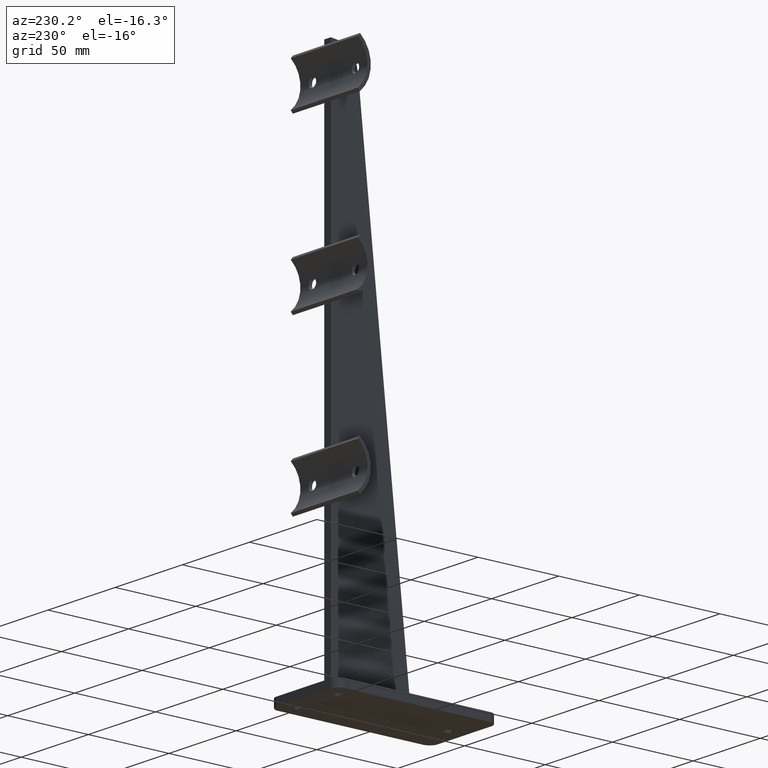
[diagram: clean part render]
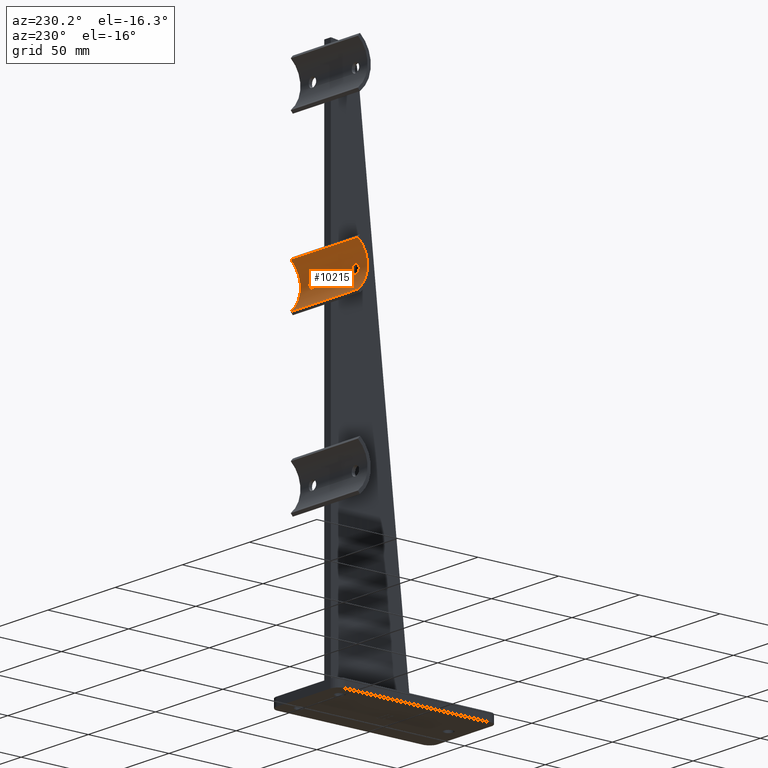
[diagram: same view with one face highlighted and labeled with its STEP entity id]
A machine part, auxiliary view. The second image highlights one B-rep face of the part: STEP entity #10215.
In plain terms, the highlighted cylindrical surface (edge-blend (fillet) strip) has radius 16.85 mm, axis along (-1, -0, -0).
Its self-contained STEP definition (entity closure, byte-faithful):
#5 = CARTESIAN_POINT ( 'NONE',  ( 15.28722502074664114, 31.21157677352550763, 209.8379272935167421 ) ) ;
#10 = VERTEX_POINT ( 'NONE', #6273 ) ;
#11 = CARTESIAN_POINT ( 'NONE',  ( -13.39025697673154625, 31.02245931335957607, 211.6144778964445834 ) ) ;
#47 = CARTESIAN_POINT ( 'NONE',  ( -13.39157880768373055, 31.02266602949436347, 213.3894934520703259 ) ) ;
#81 = CARTESIAN_POINT ( 'NONE',  ( 15.81930940758914339, 31.22590944330039520, 215.2499296659556478 ) ) ;
#88 = CARTESIAN_POINT ( 'NONE',  ( -18.66159067419291517, 31.01423909893658504, 211.7850082820090165 ) ) ;
#161 = CARTESIAN_POINT ( 'NONE',  ( 18.07246140710710591, 31.09770694955068748, 210.6835661301247455 ) ) ;
#246 = CARTESIAN_POINT ( 'NONE',  ( 17.69310687790297010, 31.14181291831046750, 210.3036388615917929 ) ) ;
#295 = CARTESIAN_POINT ( 'NONE',  ( 16.88613969995873987, 31.20313993747728176, 215.1094738047401904 ) ) ;
#599 = EDGE_CURVE ( 'NONE', #4777, #4777, #1475, .T. ) ;
#691 = EDGE_CURVE ( 'NONE', #1190, #10, #4707, .T. ) ;
#876 = CARTESIAN_POINT ( 'NONE',  ( 16.00000000000001776, 31.22592107814690721, 209.7500000000000568 ) ) ;
#914 = DIRECTION ( 'NONE',  ( 0.000000000000000000, 0.000000000000000000, -1.000000000000000000 ) ) ;
#923 = CARTESIAN_POINT ( 'NONE',  ( -18.07313476058117629, 31.09763536701751363, 214.3158766990432582 ) ) ;
#962 = CARTESIAN_POINT ( 'NONE',  ( -13.61229690601313180, 31.05561526023967289, 211.1238799557504819 ) ) ;
#1000 = CARTESIAN_POINT ( 'NONE',  ( 13.25010325931052790, 31.00001685240703253, 212.3187487400902853 ) ) ;
#1032 = CARTESIAN_POINT ( 'NONE',  ( 25.00000000000000000, 47.84999999999998010, 212.5000000000000284 ) ) ;
#1044 = CARTESIAN_POINT ( 'NONE',  ( -18.38594512453174090, 31.05586323373943003, 213.8790573258363281 ) ) ;
#1190 = VERTEX_POINT ( 'NONE', #1430 ) ;
#1199 = CARTESIAN_POINT ( 'NONE',  ( 25.00000000000000000, 36.99999999999999289, 225.3918578955866678 ) ) ;
#1204 = CARTESIAN_POINT ( 'NONE',  ( 16.36180219142763193, 31.22293221109183747, 209.7678922999344593 ) ) ;
#1208 = CARTESIAN_POINT ( 'NONE',  ( -14.61308990710472067, 31.17143243507802097, 210.0984909594845647 ) ) ;
#1430 = CARTESIAN_POINT ( 'NONE',  ( 25.00000000000000000, 36.99999999999999289, 199.6081421044133890 ) ) ;
#1475 = B_SPLINE_CURVE_WITH_KNOTS ( 'NONE', 3,
 ( #3896, #2926, #5678, #7655, #12344, #6620, #9515, #7621, #1995, #10528, #2887, #4779, #1840, #11399, #88, #11485, #3851, #6740, #7577, #9437, #3735, #8494, #1044, #4814, #923, #1955, #1918, #10571, #10407, #3810, #12300, #11438, #2963, #9555, #5755, #5793, #7694, #4852, #5717, #1882, #9598, #11526, #6578, #2809, #4695, #47, #8529, #2849, #9479, #6703, #10450, #4733, #11, #6660, #962, #4890, #4934, #5016, #1208, #4975, #7853, #6778, #2142, #2104 ),
 .UNSPECIFIED., .T., .F.,
 ( 4, 2, 2, 2, 2, 2, 2, 2, 2, 2, 2, 2, 2, 2, 2, 2, 2, 2, 2, 2, 2, 2, 2, 2, 2, 2, 2, 2, 2, 2, 2, 4 ),
 ( 0.000000000000000000, 0.0005381924915633016192, 0.001076384983126603238, 0.001614577474689904858, 0.002152769966253206477, 0.002690962457816508096, 0.003229154949379809715, 0.003767347440943111334, 0.004305539932506412953, 0.004843732424069714139, 0.005381924915633016192, 0.005920117407196317377, 0.006458309898759619430, 0.006996502390322920616, 0.007534694881886222668, 0.008072887373449523854, 0.008611079865012825907, 0.009149272356576126225, 0.009687464848139428278, 0.01022565733970273207, 0.01076384983126603238, 0.01130204232282933270, 0.01184023481439263475, 0.01237842730595593854, 0.01291661979751923886, 0.01345481228908253918, 0.01399300478064584123, 0.01453119727220914328, 0.01506938976377244534, 0.01614577474689905118, 0.01668396723846233762, 0.01722215973002562059 ),
 .UNSPECIFIED. ) ;
#1840 = CARTESIAN_POINT ( 'NONE',  ( -18.47137229060054864, 31.04336206135851128, 211.2806231436684641 ) ) ;
#1874 = CARTESIAN_POINT ( 'NONE',  ( 13.26782110814927229, 31.00293502748650454, 212.8606549452419756 ) ) ;
#1882 = CARTESIAN_POINT ( 'NONE',  ( -14.32244008154517267, 31.14216066407071537, 214.6865117806227943 ) ) ;
#1918 = CARTESIAN_POINT ( 'NONE',  ( -17.67856677578230773, 31.14204833117518589, 214.6856238620797228 ) ) ;
#1949 = CARTESIAN_POINT ( 'NONE',  ( 13.33810570095379155, 31.01419060602339073, 213.2135770647291793 ) ) ;
#1955 = CARTESIAN_POINT ( 'NONE',  ( -17.81710139316976438, 31.12738984087915739, 214.5720614007790346 ) ) ;
#1989 = CARTESIAN_POINT ( 'NONE',  ( 14.18183036890520121, 31.12726304320740667, 210.4290538148147789 ) ) ;
#1995 = CARTESIAN_POINT ( 'NONE',  ( -17.81816963109477214, 31.12726304320739956, 210.4290538148147789 ) ) ;
#2096 = CARTESIAN_POINT ( 'NONE',  ( 17.37755728276678369, 31.16961175324377109, 214.8869178828574320 ) ) ;
#2104 = CARTESIAN_POINT ( 'NONE',  ( -15.99999999999996270, 31.22592107814690365, 209.7500000000000568 ) ) ;
#2142 = CARTESIAN_POINT ( 'NONE',  ( -15.81799534347530489, 31.22592107814690365, 209.7500000000000568 ) ) ;
#2170 = VECTOR ( 'NONE', #9926, 1000.000000000000000 ) ;
#2185 = CARTESIAN_POINT ( 'NONE',  ( 17.81585700137570072, 31.12751637135917449, 214.5729912559882280 ) ) ;
#2521 = EDGE_CURVE ( 'NONE', #5695, #5695, #12085, .T. ) ;
#2586 = CARTESIAN_POINT ( 'NONE',  ( 25.00000000000000000, 36.99999999999999289, 225.3918578955866678 ) ) ;
#2725 = LINE ( 'NONE', #2586, #8786 ) ;
#2804 = CARTESIAN_POINT ( 'NONE',  ( 13.81293171376595907, 31.08296200054288505, 214.1766829028081816 ) ) ;
#2809 = CARTESIAN_POINT ( 'NONE',  ( -13.61482034663789875, 31.05597373240178527, 213.8804271613861943 ) ) ;
#2842 = CARTESIAN_POINT ( 'NONE',  ( 14.32301546036621254, 31.14221262062450890, 210.3131112287670419 ) ) ;
#2849 = CARTESIAN_POINT ( 'NONE',  ( -13.26823735599736054, 31.00300256753125083, 212.8634836499048220 ) ) ;
#2887 = CARTESIAN_POINT ( 'NONE',  ( -18.18508113167607831, 31.08322744553566253, 210.8205359700819486 ) ) ;
#2920 = CARTESIAN_POINT ( 'NONE',  ( 14.77981434536757810, 31.18202765517759545, 214.9710464121201312 ) ) ;
#2926 = CARTESIAN_POINT ( 'NONE',  ( -16.18200465652462583, 31.22592107814690721, 209.7500000000000568 ) ) ;
#2952 = CARTESIAN_POINT ( 'NONE',  ( 2.500000000000000000, 47.84999999999998010, 212.5000000000000284 ) ) ;
#2959 = CARTESIAN_POINT ( 'NONE',  ( 14.62171131636371335, 31.16954551987002731, 210.1135633365882711 ) ) ;
#2963 = CARTESIAN_POINT ( 'NONE',  ( -16.18069059241084062, 31.22590944330038454, 215.2499296659557046 ) ) ;
#3040 = CARTESIAN_POINT ( 'NONE',  ( 16.18200465652467557, 31.22592107814690365, 209.7500000000000568 ) ) ;
#3083 = CARTESIAN_POINT ( 'NONE',  ( 16.71705282925604052, 31.21141090142648267, 209.8389572437603761 ) ) ;
#3125 = CARTESIAN_POINT ( 'NONE',  ( 18.06958740763672111, 31.09806536251517173, 214.3197355189697362 ) ) ;
#3438 = AXIS2_PLACEMENT_3D ( 'NONE', #9621, #8831, #6165 ) ;
#3697 = EDGE_LOOP ( 'NONE', ( #8886 ) ) ;
#3729 = CARTESIAN_POINT ( 'NONE',  ( 13.39010531092610989, 31.02243631840573812, 213.3851467991339348 ) ) ;
#3735 = CARTESIAN_POINT ( 'NONE',  ( -18.60989468907387234, 31.02243631840573101, 213.3851467991337643 ) ) ;
#3769 = CARTESIAN_POINT ( 'NONE',  ( 13.52808328897528511, 31.04328344392344974, 213.7184674463560441 ) ) ;
#3799 = DIRECTION ( 'NONE',  ( -1.000000000000000000, -0.000000000000000000, -0.000000000000000000 ) ) ;
#3810 = CARTESIAN_POINT ( 'NONE',  ( -16.88754972215579642, 31.20307254880671266, 215.1090570889353160 ) ) ;
#3844 = CARTESIAN_POINT ( 'NONE',  ( 15.28385126544348260, 31.21143786437675516, 215.1612084688597974 ) ) ;
#3851 = CARTESIAN_POINT ( 'NONE',  ( -18.74989674068944367, 31.00001685240703964, 212.3187487400903422 ) ) ;
#3891 = CARTESIAN_POINT ( 'NONE',  ( 18.66143908557381437, 31.01426261333764955, 213.2151150261996690 ) ) ;
#3896 = CARTESIAN_POINT ( 'NONE',  ( -15.99999999999996270, 31.22592107814690365, 209.7500000000000568 ) ) ;
#3924 = CARTESIAN_POINT ( 'NONE',  ( 18.46982777941546061, 31.04359179662767687, 213.7227062025804116 ) ) ;
#3964 = CARTESIAN_POINT ( 'NONE',  ( 18.38517965336209059, 31.05597373240178527, 213.8804271613861943 ) ) ;
#4029 = CYLINDRICAL_SURFACE ( 'NONE', #6591, 16.85000000000000497 ) ;
#4609 = CARTESIAN_POINT ( 'NONE',  ( -15.99999999999996270, 31.22592107814690721, 209.7500000000000284 ) ) ;
#4648 = EDGE_CURVE ( 'NONE', #1190, #11424, #9268, .T. ) ;
#4655 = CARTESIAN_POINT ( 'NONE',  ( 13.92864394951008933, 31.09784472354249374, 210.6822973231390677 ) ) ;
#4691 = CARTESIAN_POINT ( 'NONE',  ( 14.32143322421767806, 31.14204833117519300, 214.6856238620796375 ) ) ;
#4695 = CARTESIAN_POINT ( 'NONE',  ( -13.53017222058451452, 31.04359179662767332, 213.7227062025803264 ) ) ;
#4707 = LINE ( 'NONE', #5910, #2170 ) ;
#4713 = ORIENTED_EDGE ( 'NONE', *, *, #691, .T. ) ;
#4728 = CARTESIAN_POINT ( 'NONE',  ( 13.61405487546824311, 31.05586323373944069, 213.8790573258363850 ) ) ;
#4733 = CARTESIAN_POINT ( 'NONE',  ( -13.33728927372719575, 31.01406095546570540, 211.7895920555114060 ) ) ;
#4774 = CARTESIAN_POINT ( 'NONE',  ( 13.33840932580706351, 31.01423909893656727, 211.7850082820091018 ) ) ;
#4777 = VERTEX_POINT ( 'NONE', #4609 ) ;
#4779 = CARTESIAN_POINT ( 'NONE',  ( -18.38612969201714620, 31.05584336001783186, 211.1210278927151478 ) ) ;
#4814 = CARTESIAN_POINT ( 'NONE',  ( -18.18706828623402671, 31.08296200054287795, 214.1766829028080963 ) ) ;
#4845 = CARTESIAN_POINT ( 'NONE',  ( 18.18818081424952382, 31.08281872234006826, 210.8246799812065717 ) ) ;
#4852 = CARTESIAN_POINT ( 'NONE',  ( -14.78278412133348318, 31.18223707666056299, 214.9724446627154180 ) ) ;
#4890 = CARTESIAN_POINT ( 'NONE',  ( -13.81181918575045131, 31.08281872234006826, 210.8246799812066001 ) ) ;
#4934 = CARTESIAN_POINT ( 'NONE',  ( -13.92753859289288165, 31.09770694955071235, 210.6835661301248308 ) ) ;
#4975 = CARTESIAN_POINT ( 'NONE',  ( -15.10909620793445640, 31.20288362299072560, 209.8921547682720643 ) ) ;
#5016 = CARTESIAN_POINT ( 'NONE',  ( -14.30689312209700859, 31.14181291831046750, 210.3036388615917929 ) ) ;
#5627 = CARTESIAN_POINT ( 'NONE',  ( 13.26764482324739625, 31.00290692692795957, 212.1401204898585320 ) ) ;
#5673 = CARTESIAN_POINT ( 'NONE',  ( 13.24989764103137446, 30.99998329453299561, 212.6781042359648666 ) ) ;
#5678 = CARTESIAN_POINT ( 'NONE',  ( -16.36090595283203442, 31.22293374046324388, 209.7678897974527956 ) ) ;
#5695 = VERTEX_POINT ( 'NONE', #11555 ) ;
#5717 = CARTESIAN_POINT ( 'NONE',  ( -14.62244271723320033, 31.16961175324378175, 214.8869178828574888 ) ) ;
#5751 = CARTESIAN_POINT ( 'NONE',  ( 13.81491886832390037, 31.08322744553566963, 210.8205359700819201 ) ) ;
#5755 = CARTESIAN_POINT ( 'NONE',  ( -15.64272375850486441, 31.22303223066798239, 215.2327129227051330 ) ) ;
#5790 = CARTESIAN_POINT ( 'NONE',  ( 15.63684906479108427, 31.22289082453803388, 215.2318530200205657 ) ) ;
#5793 = CARTESIAN_POINT ( 'NONE',  ( -15.28707314639108539, 31.21159035279318061, 215.1621610642597489 ) ) ;
#5910 = CARTESIAN_POINT ( 'NONE',  ( 25.00000000000000000, 36.99999999999999289, 199.6081421044133890 ) ) ;
#5922 = ORIENTED_EDGE ( 'NONE', *, *, #8828, .T. ) ;
#6165 = DIRECTION ( 'NONE',  ( 0.000000000000000000, 0.000000000000000000, -1.000000000000000000 ) ) ;
#6273 = CARTESIAN_POINT ( 'NONE',  ( -25.00000000000000000, 36.99999999999999289, 199.6081421044133890 ) ) ;
#6578 = CARTESIAN_POINT ( 'NONE',  ( -13.81430204444210297, 31.08314245748785254, 214.1785069477887760 ) ) ;
#6591 = AXIS2_PLACEMENT_3D ( 'NONE', #2952, #3799, #8518 ) ;
#6620 = CARTESIAN_POINT ( 'NONE',  ( -17.22046022213242367, 31.18200872366885434, 210.0290795493940266 ) ) ;
#6660 = CARTESIAN_POINT ( 'NONE',  ( -13.52797148458761534, 31.04326647161760278, 211.2818115653265920 ) ) ;
#6703 = CARTESIAN_POINT ( 'NONE',  ( -13.24985341563747454, 30.99997607674377420, 212.3205098373550470 ) ) ;
#6740 = CARTESIAN_POINT ( 'NONE',  ( -18.75010235896861843, 30.99998329453299206, 212.6781042359647813 ) ) ;
#6775 = CARTESIAN_POINT ( 'NONE',  ( 18.75014658436249348, 30.99997607674377065, 212.3205098373549617 ) ) ;
#6778 = CARTESIAN_POINT ( 'NONE',  ( -15.63819780857234321, 31.22293221109183747, 209.7678922999343740 ) ) ;
#6813 = CARTESIAN_POINT ( 'NONE',  ( 18.60842119231623926, 31.02266602949437413, 213.3894934520704112 ) ) ;
#6901 = CARTESIAN_POINT ( 'NONE',  ( 16.17854333121587374, 31.22593264365529464, 215.2500699148870353 ) ) ;
#6939 = CARTESIAN_POINT ( 'NONE',  ( 17.67755991845479713, 31.14216066407072603, 214.6865117806227659 ) ) ;
#7416 = ORIENTED_EDGE ( 'NONE', *, *, #8908, .F. ) ;
#7527 = CARTESIAN_POINT ( 'NONE',  ( 15.63909404716794604, 31.22293374046323322, 209.7678897974527388 ) ) ;
#7534 = EDGE_LOOP ( 'NONE', ( #5922, #7416, #8997, #4713 ) ) ;
#7574 = CARTESIAN_POINT ( 'NONE',  ( 15.81799534347535285, 31.22592107814691076, 209.7500000000000568 ) ) ;
#7577 = CARTESIAN_POINT ( 'NONE',  ( -18.73217889185070817, 31.00293502748650809, 212.8606549452420040 ) ) ;
#7582 = ORIENTED_EDGE ( 'NONE', *, *, #599, .F. ) ;
#7621 = CARTESIAN_POINT ( 'NONE',  ( -17.67698453963376437, 31.14221262062450890, 210.3131112287670419 ) ) ;
#7655 = CARTESIAN_POINT ( 'NONE',  ( -16.71277497925334288, 31.21157677352551474, 209.8379272935167990 ) ) ;
#7682 = DIRECTION ( 'NONE',  ( -1.000000000000000000, -0.000000000000000000, -0.000000000000000000 ) ) ;
#7694 = CARTESIAN_POINT ( 'NONE',  ( -15.11386030004124947, 31.20313993747728176, 215.1094738047401904 ) ) ;
#7805 = CARTESIAN_POINT ( 'NONE',  ( 18.73176264400262170, 31.00300256753124373, 212.8634836499049356 ) ) ;
#7845 = CARTESIAN_POINT ( 'NONE',  ( 16.71292685360889152, 31.21159035279317351, 215.1621610642595783 ) ) ;
#7853 = CARTESIAN_POINT ( 'NONE',  ( -15.28294717074393105, 31.21141090142648977, 209.8389572437604613 ) ) ;
#7914 = EDGE_LOOP ( 'NONE', ( #7582 ) ) ;
#7916 = FACE_OUTER_BOUND ( 'NONE', #7534, .T. ) ;
#8489 = CARTESIAN_POINT ( 'NONE',  ( 14.77953977786756568, 31.18200872366885434, 210.0290795493940266 ) ) ;
#8494 = CARTESIAN_POINT ( 'NONE',  ( -18.47191671102469712, 31.04328344392344974, 213.7184674463561009 ) ) ;
#8518 = DIRECTION ( 'NONE',  ( 0.000000000000000000, 0.000000000000000000, 1.000000000000000000 ) ) ;
#8529 = CARTESIAN_POINT ( 'NONE',  ( -13.33856091442616965, 31.01426261333764245, 213.2151150261995838 ) ) ;
#8562 = CARTESIAN_POINT ( 'NONE',  ( 15.11241139063677963, 31.20307164749261375, 209.8909470132710453 ) ) ;
#8680 = CARTESIAN_POINT ( 'NONE',  ( 18.38770309398685043, 31.05561526023968355, 211.1238799557503967 ) ) ;
#8714 = CARTESIAN_POINT ( 'NONE',  ( 18.47202851541236157, 31.04326647161761343, 211.2818115653266773 ) ) ;
#8756 = CARTESIAN_POINT ( 'NONE',  ( 18.66271072627278471, 31.01406095546571962, 211.7895920555114628 ) ) ;
#8786 = VECTOR ( 'NONE', #12080, 1000.000000000000000 ) ;
#8791 = FACE_BOUND ( 'NONE', #7914, .T. ) ;
#8824 = CARTESIAN_POINT ( 'NONE',  ( 18.18569795555787394, 31.08314245748786675, 214.1785069477888612 ) ) ;
#8828 = EDGE_CURVE ( 'NONE', #10, #12163, #9301, .T. ) ;
#8831 = DIRECTION ( 'NONE',  ( -1.000000000000000000, -0.000000000000000000, -0.000000000000000000 ) ) ;
#8886 = ORIENTED_EDGE ( 'NONE', *, *, #2521, .F. ) ;
#8908 = EDGE_CURVE ( 'NONE', #11424, #12163, #2725, .T. ) ;
#8997 = ORIENTED_EDGE ( 'NONE', *, *, #4648, .F. ) ;
#9268 = CIRCLE ( 'NONE', #10226, 16.84999999999997655 ) ;
#9301 = CIRCLE ( 'NONE', #3438, 16.84999999999997655 ) ;
#9437 = CARTESIAN_POINT ( 'NONE',  ( -18.66189429904618180, 31.01419060602339783, 213.2135770647291793 ) ) ;
#9473 = CARTESIAN_POINT ( 'NONE',  ( 14.18289860683022496, 31.12738984087915384, 214.5720614007790346 ) ) ;
#9479 = CARTESIAN_POINT ( 'NONE',  ( -13.25014839588069826, 31.00002421890452453, 212.6839540956046335 ) ) ;
#9515 = CARTESIAN_POINT ( 'NONE',  ( -17.37828868363627777, 31.16954551987002020, 210.1135633365882711 ) ) ;
#9550 = CARTESIAN_POINT ( 'NONE',  ( 15.11245027784417871, 31.20307254880670556, 215.1090570889352591 ) ) ;
#9555 = CARTESIAN_POINT ( 'NONE',  ( -15.82145666878411561, 31.22593264365529464, 215.2500699148870353 ) ) ;
#9590 = CARTESIAN_POINT ( 'NONE',  ( 18.74985160411928220, 31.00002421890454940, 212.6839540956046335 ) ) ;
#9598 = CARTESIAN_POINT ( 'NONE',  ( -14.18414299862426908, 31.12751637135917093, 214.5729912559881143 ) ) ;
#9621 = CARTESIAN_POINT ( 'NONE',  ( -25.00000000000000000, 47.84999999999998010, 212.5000000000000284 ) ) ;
#9633 = CARTESIAN_POINT ( 'NONE',  ( 16.35727624149511428, 31.22303223066800015, 215.2327129227052183 ) ) ;
#9699 = FACE_BOUND ( 'NONE', #3697, .T. ) ;
#9758 = CARTESIAN_POINT ( 'NONE',  ( 18.73245599616783252, 31.00288953943557146, 212.1416815823781690 ) ) ;
#9926 = DIRECTION ( 'NONE',  ( -1.000000000000000000, -0.000000000000000000, -0.000000000000000000 ) ) ;
#10215 = ADVANCED_FACE ( 'NONE', ( #7916, #8791, #9699 ), #4029, .F. ) ;
#10226 = AXIS2_PLACEMENT_3D ( 'NONE', #1032, #7682, #914 ) ;
#10403 = CARTESIAN_POINT ( 'NONE',  ( 13.92686523941879706, 31.09763536701752784, 214.3158766990431729 ) ) ;
#10407 = CARTESIAN_POINT ( 'NONE',  ( -17.22018565463239881, 31.18202765517759545, 214.9710464121201312 ) ) ;
#10450 = CARTESIAN_POINT ( 'NONE',  ( -13.26754400383212840, 31.00288953943555015, 212.1416815823781405 ) ) ;
#10486 = CARTESIAN_POINT ( 'NONE',  ( 13.61387030798284314, 31.05584336001781409, 211.1210278927151194 ) ) ;
#10522 = CARTESIAN_POINT ( 'NONE',  ( 13.39137413385330788, 31.02263161657875656, 211.6113875946311111 ) ) ;
#10528 = CARTESIAN_POINT ( 'NONE',  ( -18.07135605048988936, 31.09784472354250084, 210.6822973231390961 ) ) ;
#10566 = CARTESIAN_POINT ( 'NONE',  ( 18.60974302326843244, 31.02245931335957252, 211.6144778964445550 ) ) ;
#10571 = CARTESIAN_POINT ( 'NONE',  ( -17.38108916787887992, 31.16930847246861092, 214.8847705964347199 ) ) ;
#10603 = CARTESIAN_POINT ( 'NONE',  ( 16.00000000000001776, 31.22592107814690721, 209.7500000000000568 ) ) ;
#11316 = CARTESIAN_POINT ( 'NONE',  ( 13.52862770939944426, 31.04336206135851128, 211.2806231436684925 ) ) ;
#11395 = CARTESIAN_POINT ( 'NONE',  ( 14.61891083212110765, 31.16930847246861092, 214.8847705964346915 ) ) ;
#11399 = CARTESIAN_POINT ( 'NONE',  ( -18.60862586614666725, 31.02263161657875656, 211.6113875946311111 ) ) ;
#11424 = VERTEX_POINT ( 'NONE', #1199 ) ;
#11438 = CARTESIAN_POINT ( 'NONE',  ( -16.36315093520889974, 31.22289082453803744, 215.2318530200205657 ) ) ;
#11485 = CARTESIAN_POINT ( 'NONE',  ( -18.73235517675258421, 31.00290692692795602, 212.1401204898585604 ) ) ;
#11520 = CARTESIAN_POINT ( 'NONE',  ( 17.38691009289526335, 31.17143243507802808, 210.0984909594845931 ) ) ;
#11526 = CARTESIAN_POINT ( 'NONE',  ( -13.93041259236325580, 31.09806536251517173, 214.3197355189698214 ) ) ;
#11555 = CARTESIAN_POINT ( 'NONE',  ( 16.00000000000001776, 31.22592107814690721, 209.7500000000000284 ) ) ;
#11564 = CARTESIAN_POINT ( 'NONE',  ( 16.89090379206551873, 31.20288362299073270, 209.8921547682720359 ) ) ;
#11686 = CARTESIAN_POINT ( 'NONE',  ( 17.21721587866649017, 31.18223707666054878, 214.9724446627153895 ) ) ;
#11865 = CARTESIAN_POINT ( 'NONE',  ( -25.00000000000000000, 36.99999999999999289, 225.3918578955866678 ) ) ;
#12080 = DIRECTION ( 'NONE',  ( -1.000000000000000000, -0.000000000000000000, -0.000000000000000000 ) ) ;
#12085 = B_SPLINE_CURVE_WITH_KNOTS ( 'NONE', 3,
 ( #876, #7574, #7527, #5, #8562, #8489, #2959, #2842, #1989, #4655, #5751, #10486, #11316, #10522, #4774, #5627, #1000, #5673, #1874, #1949, #3729, #3769, #4728, #2804, #10403, #9473, #4691, #11395, #2920, #9550, #3844, #5790, #81, #6901, #9633, #7845, #295, #11686, #2096, #6939, #2185, #3125, #8824, #3964, #3924, #6813, #3891, #7805, #9590, #6775, #9758, #8756, #10566, #8714, #8680, #4845, #161, #246, #11520, #11564, #3083, #1204, #3040, #10603 ),
 .UNSPECIFIED., .T., .F.,
 ( 4, 2, 2, 2, 2, 2, 2, 2, 2, 2, 2, 2, 2, 2, 2, 2, 2, 2, 2, 2, 2, 2, 2, 2, 2, 2, 2, 2, 2, 2, 2, 4 ),
 ( 0.000000000000000000, 0.0005381924915633069318, 0.001076384983126608876, 0.001614577474689910712, 0.002152769966253212548, 0.002690962457816514601, 0.003229154949379816220, 0.003767347440943117839, 0.004305539932506419025, 0.004843732424069721078, 0.005381924915633023998, 0.005920117407196326051, 0.006458309898759627236, 0.006996502390322930157, 0.007534694881886232209, 0.008072887373449534262, 0.008611079865012836315, 0.009149272356576138368, 0.009687464848139438686, 0.01022565733970274074, 0.01076384983126604279, 0.01130204232282934311, 0.01184023481439264343, 0.01237842730595594548, 0.01291661979751924580, 0.01345481228908254785, 0.01399300478064584990, 0.01453119727220915022, 0.01506938976377245054, 0.01614577474689905812, 0.01668396723846234109, 0.01722215973002562753 ),
 .UNSPECIFIED. ) ;
#12163 = VERTEX_POINT ( 'NONE', #11865 ) ;
#12300 = CARTESIAN_POINT ( 'NONE',  ( -16.71614873455649430, 31.21143786437675871, 215.1612084688598543 ) ) ;
#12344 = CARTESIAN_POINT ( 'NONE',  ( -16.88758860936319905, 31.20307164749261375, 209.8909470132710453 ) ) ;